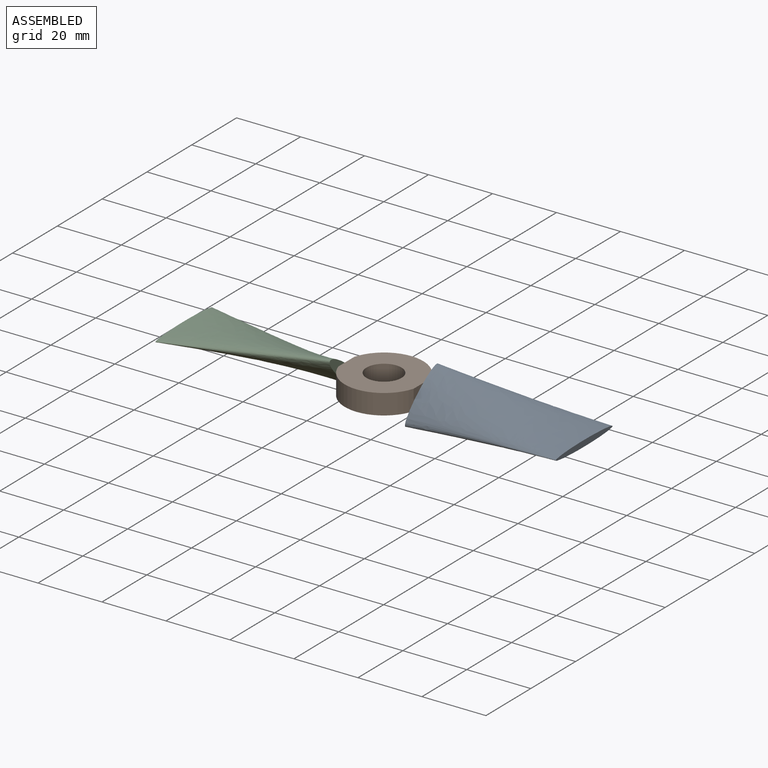
[diagram: assembled view]
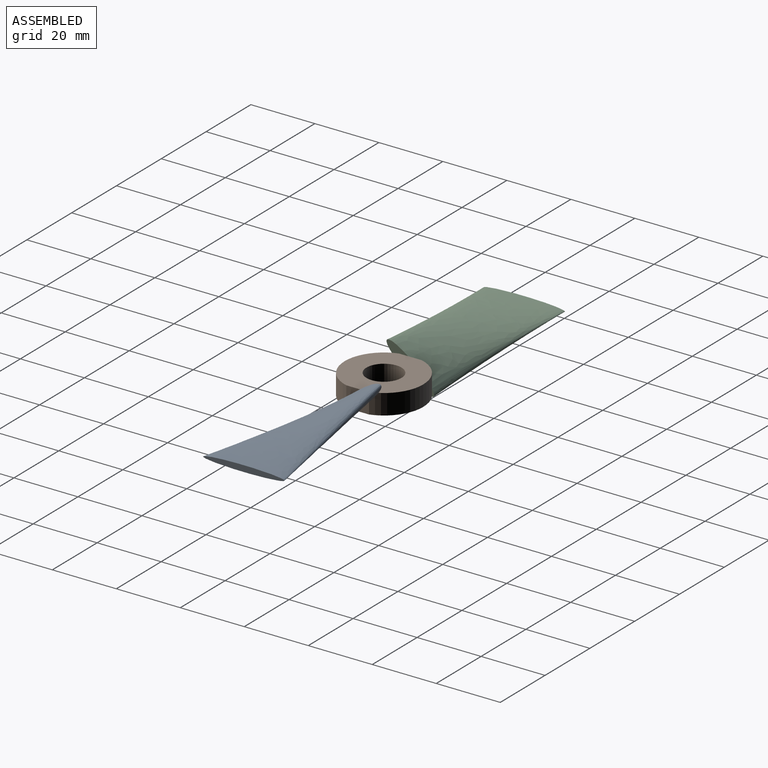
[diagram: assembled view, second angle]
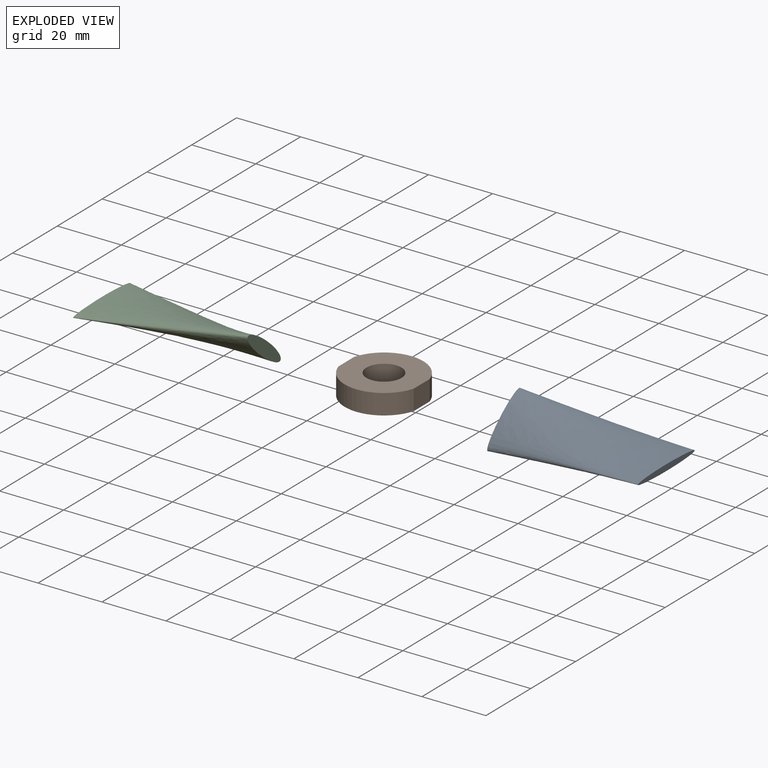
[diagram: exploded view]
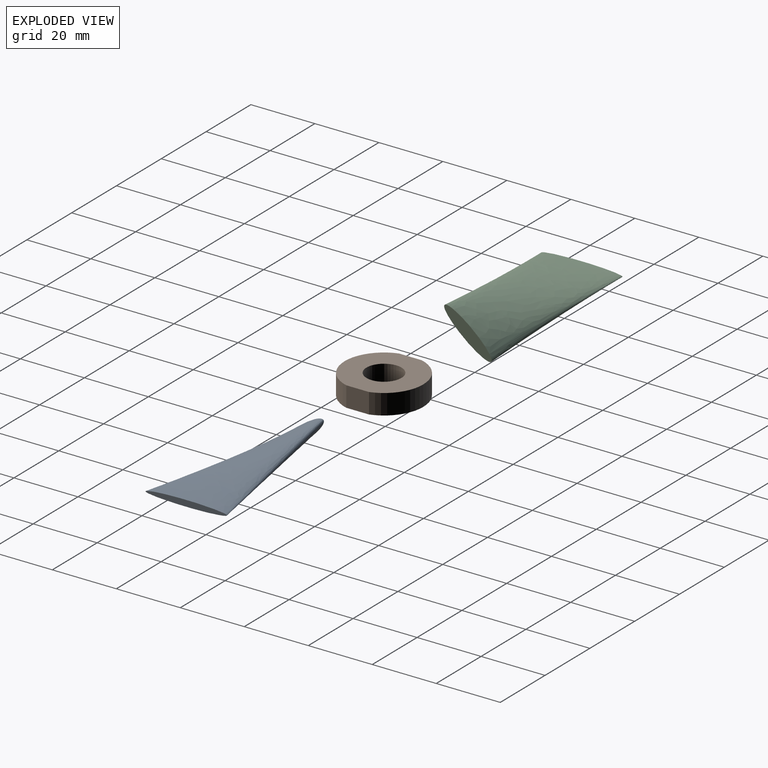
[diagram: exploded view, second angle]
ASSEMBLY  parts=3 mates=2
PART A: 3 faces, bbox 50.8x25.4x12.7 mm
  f0: plane 25.41x1.95mm, normal (-1,0,0), area 38.8mm2, adj f2
  f1: plane 14.95x12.67mm, normal (1,0,0), area 62.1mm2, adj f2
  f2: bspline ~50.8x25.37mm, area 2253.9mm2, adj f0,f1
PART B: 7 faces, bbox 23.5x24.6x6.4 mm
  f0: plane 7.11x6.35mm, normal (1,0,0), area 45.1mm2, adj f1,f4,f5,f6
  f1: cylinder r=12.29mm len=23.52mm, axis (0,0,-1), area 199.3mm2, adj f0,f2,f5,f6
  f2: plane 7.11x6.35mm, normal (-1,0,0), area 45.1mm2, adj f1,f4,f5,f6
  f3: cylinder r=5.48mm len=10.96mm, axis (0,0,-1), area 218.6mm2, adj f5,f6
  f4: cylinder r=12.29mm len=23.52mm, axis (0,0,-1), area 199.3mm2, adj f0,f2,f5,f6
  f5: plane 24.57x23.52mm, normal (0,0,1), area 374.9mm2, adj f0,f1,f2,f3,f4
  f6: plane 24.57x23.52mm, normal (0,0,-1), area 374.9mm2, adj f0,f1,f2,f3,f4
PART C: same geometry as A
PLACE A rot(axis=(0,0,1),180deg) t=(36.09,-62.98,-64.77)mm
PLACE B t=(-58.62,69.28,-23.92)mm
PLACE C t=(-89.03,13.22,-64.77)mm
MATE fastened A.f1 <-> B.f0  axis (-1,0,0) through (-14.71,-24.88,-20.74)mm
MATE fastened C.f1 <-> B.f2  axis (1,0,0) through (-38.23,-24.88,-20.74)mm
